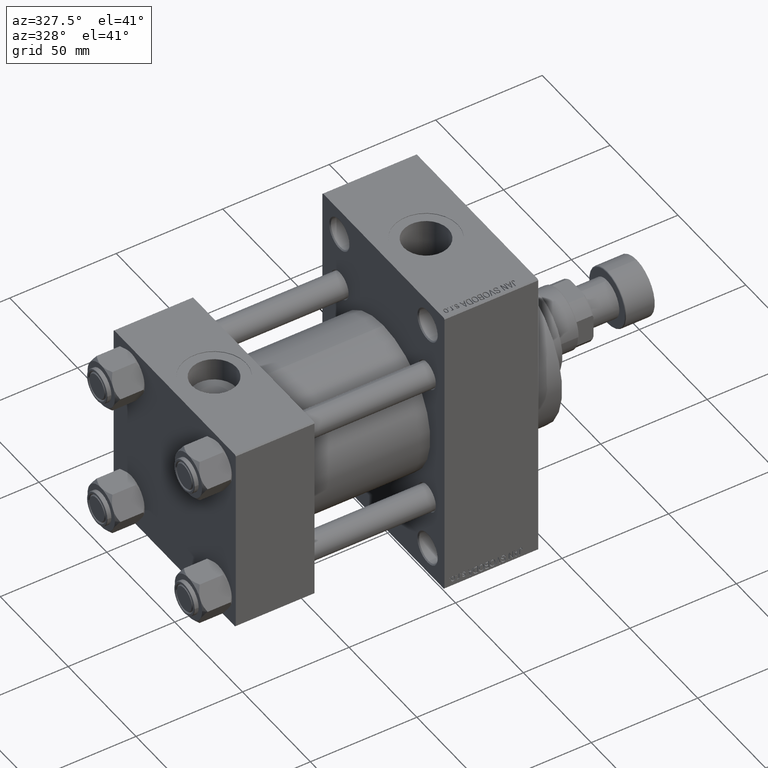
[diagram: clean part render]
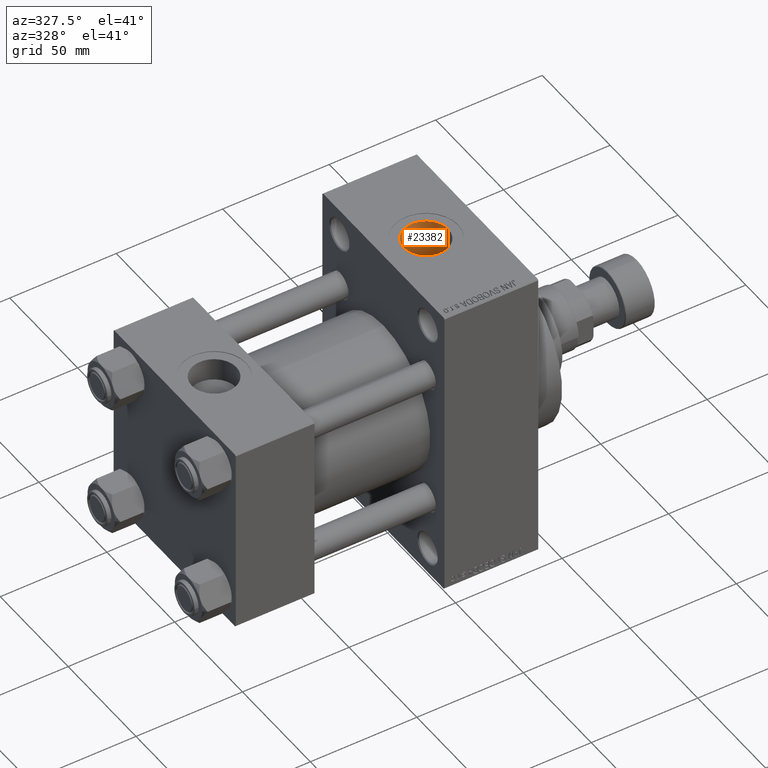
[diagram: same view with one face highlighted and labeled with its STEP entity id]
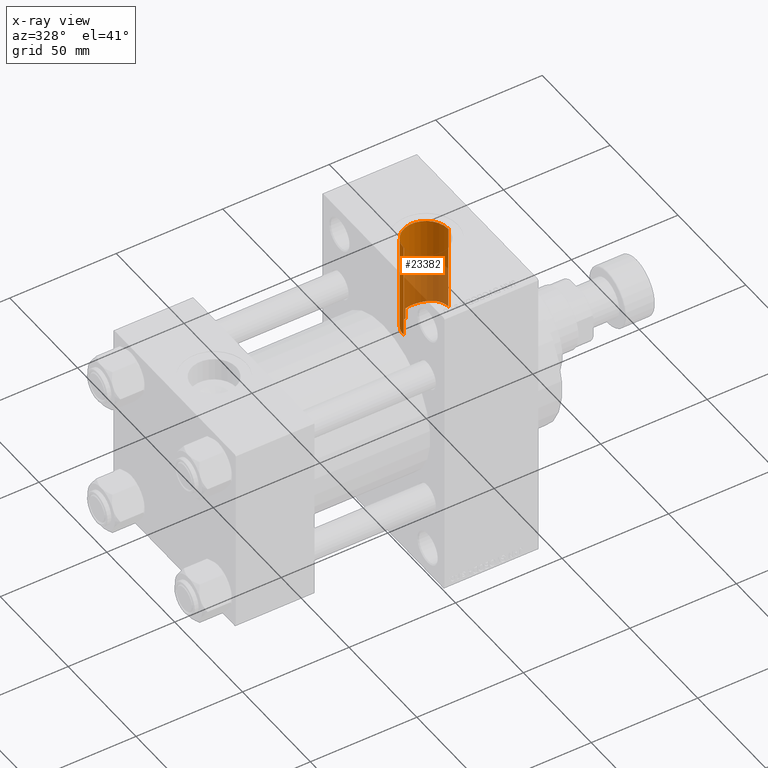
[diagram: x-ray of the same camera — body ghosted, the highlighted face saturated]
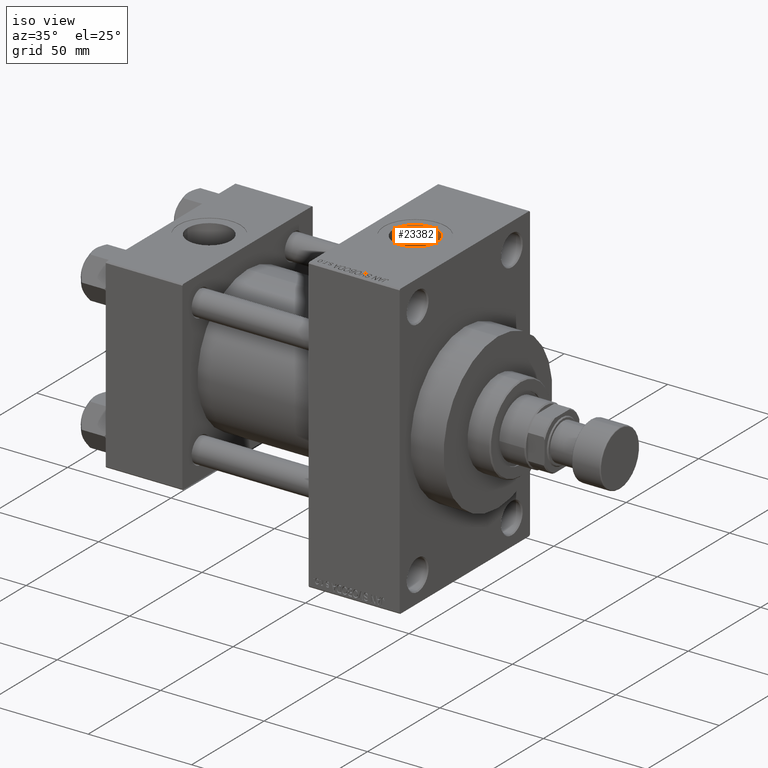
[diagram: same view with one face highlighted and labeled with its STEP entity id]
A machine part, auxiliary view. The second image highlights one B-rep face of the part: STEP entity #23382.
The next image is the same camera in x-ray: the body ghosted, the highlighted face saturated — about 45% of this face is hidden behind the body in this view.
A second angle (iso view) of the same face is appended — the face is thin or edge-on in the first view.
In plain terms, the highlighted cylindrical surface (edge-blend (fillet) strip) has radius 10.48 mm, axis along (0, 0, -1).
Its self-contained STEP definition (entity closure, byte-faithful):
#590 = CARTESIAN_POINT ( 'NONE',  ( 128.4800000000000182, -9.664602758436087591E-15, 70.79999999999996874 ) ) ;
#745 = CARTESIAN_POINT ( 'NONE',  ( 118.8327597629122039, 10.45516439159307254, 28.11920784241486970 ) ) ;
#950 = CARTESIAN_POINT ( 'NONE',  ( 107.6081712893590634, 1.384942614456408760, 24.96313457725881335 ) ) ;
#1204 = CARTESIAN_POINT ( 'NONE',  ( 108.9306559456027088, 5.280155339913236823, 24.44112276137722262 ) ) ;
#1452 = CARTESIAN_POINT ( 'NONE',  ( 110.9846989220167615, 7.804704455460329093, 23.75393200882464484 ) ) ;
#1488 = CARTESIAN_POINT ( 'NONE',  ( 126.4793501314061501, 6.172613663302645826, 29.36019312204048148 ) ) ;
#1984 = CARTESIAN_POINT ( 'NONE',  ( 122.7931686517055567, 9.355930520045824039, 28.50576369173083435 ) ) ;
#3030 = AXIS2_PLACEMENT_3D ( 'NONE', #20675, #23464, #8611 ) ;
#3751 = CARTESIAN_POINT ( 'NONE',  ( 107.7407124806769758, 2.210995156578866805, 24.90815361058044530 ) ) ;
#5486 = CARTESIAN_POINT ( 'NONE',  ( 112.2707649538851058, 8.791964167062978674, 23.40546361773868611 ) ) ;
#5521 = CARTESIAN_POINT ( 'NONE',  ( 121.6536175153769932, 9.831116643405007238, 28.34390843602811927 ) ) ;
#5687 = EDGE_CURVE ( 'NONE', #40656, #44352, #47391, .T. ) ;
#5728 = CARTESIAN_POINT ( 'NONE',  ( 108.5534232013268507, 4.546234407114488896, 24.58442359052068227 ) ) ;
#5766 = CARTESIAN_POINT ( 'NONE',  ( 128.4800000000000182, 3.673940397618681979E-15, 30.00000000000000000 ) ) ;
#5803 = VECTOR ( 'NONE', #32837, 1000.000000000000000 ) ;
#8442 = EDGE_CURVE ( 'NONE', #20554, #32064, #14987, .T. ) ;
#8568 = CARTESIAN_POINT ( 'NONE',  ( 120.4620306645708467, 10.19511646566076912, 28.21478357702914863 ) ) ;
#8611 = DIRECTION ( 'NONE',  ( 1.000000000000000000, 0.000000000000000000, 0.000000000000000000 ) ) ;
#9299 = CARTESIAN_POINT ( 'NONE',  ( 128.4800000000000466, 0.8289108953755207621, 30.00000000000000711 ) ) ;
#11208 = DIRECTION ( 'NONE',  ( 0.000000000000000000, 0.000000000000000000, -1.000000000000000000 ) ) ;
#11316 = CARTESIAN_POINT ( 'NONE',  ( 108.1284384137638739, 3.529601645624522277, 24.75098332906153331 ) ) ;
#12061 = VERTEX_POINT ( 'NONE', #19535 ) ;
#12448 = VECTOR ( 'NONE', #23572, 1000.000000000000000 ) ;
#12577 = CARTESIAN_POINT ( 'NONE',  ( 117.5797722390586841, 10.47976684723566265, 28.11006442857998877 ) ) ;
#13069 = CARTESIAN_POINT ( 'NONE',  ( 125.4361280113390791, 7.429595108124765979, 29.07242469717888866 ) ) ;
#13347 = ORIENTED_EDGE ( 'NONE', *, *, #15246, .F. ) ;
#14638 = CARTESIAN_POINT ( 'NONE',  ( 118.0000000000000142, -1.094803260394251466E-14, 93.79999999999996874 ) ) ;
#14987 = LINE ( 'NONE', #49679, #17207 ) ;
#15246 = EDGE_CURVE ( 'NONE', #12061, #42123, #19313, .T. ) ;
#16334 = ORIENTED_EDGE ( 'NONE', *, *, #27412, .T. ) ;
#17207 = VECTOR ( 'NONE', #11208, 1000.000000000000000 ) ;
#17355 = CARTESIAN_POINT ( 'NONE',  ( 127.6823871826148178, 4.031213830330551140, 29.73045584359392279 ) ) ;
#19313 = LINE ( 'NONE', #27594, #12448 ) ;
#19535 = CARTESIAN_POINT ( 'NONE',  ( 114.7400000000000375, 9.960060240781677621, 28.29836037653065262 ) ) ;
#19600 = CARTESIAN_POINT ( 'NONE',  ( 107.5200000000000102, -1.094803260394251466E-14, 70.79999999999996874 ) ) ;
#20107 = CARTESIAN_POINT ( 'NONE',  ( 107.5200000000000102, 3.061579607129328475E-15, 25.00000000000000000 ) ) ;
#20348 = CARTESIAN_POINT ( 'NONE',  ( 109.6967244621314990, 6.399965487557570221, 24.16798554837829016 ) ) ;
#20554 = VERTEX_POINT ( 'NONE', #590 ) ;
#20624 = ORIENTED_EDGE ( 'NONE', *, *, #43379, .F. ) ;
#20675 = CARTESIAN_POINT ( 'NONE',  ( 118.0000000000000142, -1.094803260394251466E-14, 70.79999999999996874 ) ) ;
#20882 = CARTESIAN_POINT ( 'NONE',  ( 123.5055286267077435, 8.955395143035861594, 28.63663715154386225 ) ) ;
#21292 = B_SPLINE_CURVE_WITH_KNOTS ( 'NONE', 3,
 ( #20107, #35445, #26920, #26673, #950, #3751, #45758, #11316, #38719, #28141, #5728, #1204, #27894, #20348, #43961, #47228, #32664, #1452, #40207, #5486, #28640, #47472, #40453, #44206 ),
 .UNSPECIFIED., .F., .F.,
 ( 4, 2, 2, 2, 2, 2, 2, 2, 2, 2, 2, 4 ),
 ( 0.03315293716445248673, 0.03398143856659530115, 0.03480993996873811558, 0.03646694277302374443, 0.03729544417516655191, 0.03812394557730936634, 0.03978094838159499519, 0.04060944978373780961, 0.04143795118588062404, 0.04309495399016624595, 0.04475195679445187480, 0.04640895959873749671 ),
 .UNSPECIFIED. ) ;
#22199 = FACE_OUTER_BOUND ( 'NONE', #34613, .T. ) ;
#22686 = DIRECTION ( 'NONE',  ( -1.000000000000000000, 0.000000000000000000, 0.000000000000000000 ) ) ;
#23165 = CIRCLE ( 'NONE', #3030, 10.48000000000000398 ) ;
#23382 = ADVANCED_FACE ( 'NONE', ( #22199 ), #25960, .F. ) ;
#23424 = CARTESIAN_POINT ( 'NONE',  ( 115.5317014108506584, 10.21918985817145753, 28.20715556589740558 ) ) ;
#23464 = DIRECTION ( 'NONE',  ( -0.000000000000000000, -0.000000000000000000, -1.000000000000000000 ) ) ;
#23572 = DIRECTION ( 'NONE',  ( 0.000000000000000000, 0.000000000000000000, -1.000000000000000000 ) ) ;
#24875 = CARTESIAN_POINT ( 'NONE',  ( 128.4800000000000182, 3.673940397618681979E-15, 30.00000000000000000 ) ) ;
#24905 = CARTESIAN_POINT ( 'NONE',  ( 126.9382592368621943, 5.487081182378862110, 29.49600040171357662 ) ) ;
#25960 = CYLINDRICAL_SURFACE ( 'NONE', #40782, 10.48000000000000398 ) ;
#26673 = CARTESIAN_POINT ( 'NONE',  ( 107.5748675089374302, 1.106412475567419396, 24.97704123077414096 ) ) ;
#26920 = CARTESIAN_POINT ( 'NONE',  ( 107.5308991753443024, 0.5526879277622503972, 24.99542504668380616 ) ) ;
#27412 = EDGE_CURVE ( 'NONE', #12061, #32064, #44107, .T. ) ;
#27594 = CARTESIAN_POINT ( 'NONE',  ( 114.7400000000000375, 9.960060240781677621, 93.79999999999996874 ) ) ;
#27684 = CARTESIAN_POINT ( 'NONE',  ( 119.2444743077375477, 10.41402026144617921, 28.13455134504983590 ) ) ;
#27894 = CARTESIAN_POINT ( 'NONE',  ( 109.2168952918916318, 5.742964677340212098, 24.33562597405337158 ) ) ;
#28141 = CARTESIAN_POINT ( 'NONE',  ( 108.4364837241044341, 4.294796546401079773, 24.62967549968344017 ) ) ;
#28423 = CARTESIAN_POINT ( 'NONE',  ( 128.0901672462784404, 2.862209008249559261, 29.86591119163860952 ) ) ;
#28640 = CARTESIAN_POINT ( 'NONE',  ( 112.7334908428740476, 9.077331294423922614, 23.29539276492242905 ) ) ;
#29290 = EDGE_CURVE ( 'NONE', #44352, #42123, #21292, .T. ) ;
#30470 = CARTESIAN_POINT ( 'NONE',  ( 107.5200000000000102, 3.061579607129328475E-15, 25.00000000000000000 ) ) ;
#32064 = VERTEX_POINT ( 'NONE', #24875 ) ;
#32200 = CARTESIAN_POINT ( 'NONE',  ( 127.9683417730960997, 3.260593319422033343, 29.82480881445975385 ) ) ;
#32448 = CARTESIAN_POINT ( 'NONE',  ( 127.5177326829065834, 4.405705906582507048, 29.67702246902073071 ) ) ;
#32664 = CARTESIAN_POINT ( 'NONE',  ( 110.4055094269453008, 7.226927296489276564, 23.93349527817645139 ) ) ;
#32837 = DIRECTION ( 'NONE',  ( 0.000000000000000000, 0.000000000000000000, -1.000000000000000000 ) ) ;
#34613 = EDGE_LOOP ( 'NONE', ( #49002, #20624, #45967, #49054, #13347, #16334 ) ) ;
#35243 = CARTESIAN_POINT ( 'NONE',  ( 118.0002282757462950, 10.48827684731155330, 28.10687390860659107 ) ) ;
#35445 = CARTESIAN_POINT ( 'NONE',  ( 107.5200000000000387, 0.2761730040892637628, 25.00000000000000711 ) ) ;
#37287 = DIRECTION ( 'NONE',  ( 0.000000000000000000, 0.000000000000000000, -1.000000000000000000 ) ) ;
#38719 = CARTESIAN_POINT ( 'NONE',  ( 108.2242790990456740, 3.787004330726786439, 24.71284667523638845 ) ) ;
#38842 = CARTESIAN_POINT ( 'NONE',  ( 114.7400000000000375, 9.960060240781677621, 22.93026820601974691 ) ) ;
#39998 = CARTESIAN_POINT ( 'NONE',  ( 121.2590511626586931, 9.968980903825993778, 28.29547369785728250 ) ) ;
#40207 = CARTESIAN_POINT ( 'NONE',  ( 111.3963603562479676, 8.155655190358228168, 23.63471280748279924 ) ) ;
#40453 = CARTESIAN_POINT ( 'NONE',  ( 114.2204695759653958, 9.790014162604533610, 23.00412993180228227 ) ) ;
#40656 = VERTEX_POINT ( 'NONE', #19600 ) ;
#40782 = AXIS2_PLACEMENT_3D ( 'NONE', #14638, #37287, #22686 ) ;
#42123 = VERTEX_POINT ( 'NONE', #38842 ) ;
#42520 = CARTESIAN_POINT ( 'NONE',  ( 114.7400000000000375, 9.960060240781677621, 28.29836037653065262 ) ) ;
#43006 = CARTESIAN_POINT ( 'NONE',  ( 120.0591099703892723, 10.28399729863217438, 28.18233838691855198 ) ) ;
#43379 = EDGE_CURVE ( 'NONE', #40656, #20554, #23165, .T. ) ;
#43748 = CARTESIAN_POINT ( 'NONE',  ( 126.2306735501210966, 6.500194899328803011, 29.28905352826703279 ) ) ;
#43961 = CARTESIAN_POINT ( 'NONE',  ( 109.8651253838970803, 6.612730445768647769, 24.11053477674085954 ) ) ;
#43996 = CARTESIAN_POINT ( 'NONE',  ( 127.1456671303457568, 5.133639323080409156, 29.55979794353439871 ) ) ;
#44107 = B_SPLINE_CURVE_WITH_KNOTS ( 'NONE', 3,
 ( #42520, #23424, #46528, #12577, #35243, #745, #27684, #43006, #8568, #39998, #5521, #1984, #20882, #47505, #13069, #43748, #1488, #24905, #43996, #32448, #17355, #32200, #28423, #47761, #9299, #5766 ),
 .UNSPECIFIED., .F., .F.,
 ( 4, 2, 2, 2, 2, 2, 2, 2, 2, 2, 2, 2, 4 ),
 ( 0.000000000000000000, 0.002478973229448049737, 0.003718459844172074605, 0.004957946458896099473, 0.006197433073620124341, 0.007436919688344149210, 0.009915892917792157313, 0.01239486614724016542, 0.01363435276196416947, 0.01487383937668817525, 0.01611332599141217931, 0.01735281260613618162, 0.01983178583558416891 ),
 .UNSPECIFIED. ) ;
#44206 = CARTESIAN_POINT ( 'NONE',  ( 114.7400000000000375, 9.960060240781677621, 22.93026820601974691 ) ) ;
#44352 = VERTEX_POINT ( 'NONE', #30470 ) ;
#45758 = CARTESIAN_POINT ( 'NONE',  ( 107.8714792709155716, 2.746840284963956158, 24.85421337676989140 ) ) ;
#45967 = ORIENTED_EDGE ( 'NONE', *, *, #5687, .T. ) ;
#46528 = CARTESIAN_POINT ( 'NONE',  ( 116.3405906774044780, 10.38092379675460464, 28.14678245432905257 ) ) ;
#47228 = CARTESIAN_POINT ( 'NONE',  ( 110.2191150461718649, 7.025825097695094890, 23.99341311413245847 ) ) ;
#47391 = LINE ( 'NONE', #47895, #5803 ) ;
#47472 = CARTESIAN_POINT ( 'NONE',  ( 113.7145022253386344, 9.579591377203493963, 23.09339075464095714 ) ) ;
#47505 = CARTESIAN_POINT ( 'NONE',  ( 124.8380018292597669, 7.984464829307546196, 28.92238598225677748 ) ) ;
#47761 = CARTESIAN_POINT ( 'NONE',  ( 128.3830360161806539, 1.648097371455662818, 29.96570276014227119 ) ) ;
#47895 = CARTESIAN_POINT ( 'NONE',  ( 107.5200000000000102, -1.094803260394251466E-14, 93.79999999999996874 ) ) ;
#49002 = ORIENTED_EDGE ( 'NONE', *, *, #8442, .F. ) ;
#49054 = ORIENTED_EDGE ( 'NONE', *, *, #29290, .T. ) ;
#49679 = CARTESIAN_POINT ( 'NONE',  ( 128.4800000000000182, -9.664602758436087591E-15, 93.79999999999996874 ) ) ;